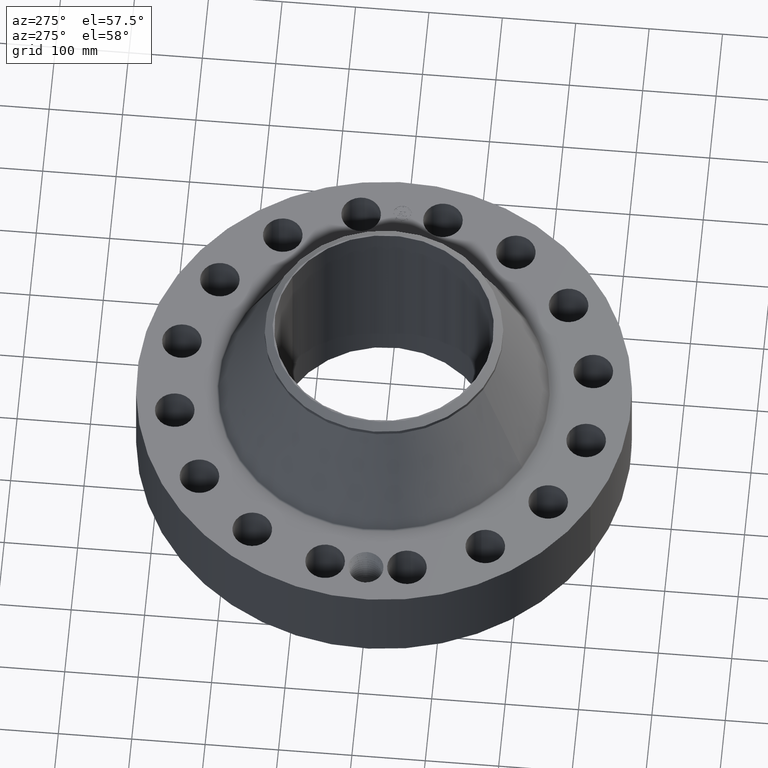
[diagram: clean part render]
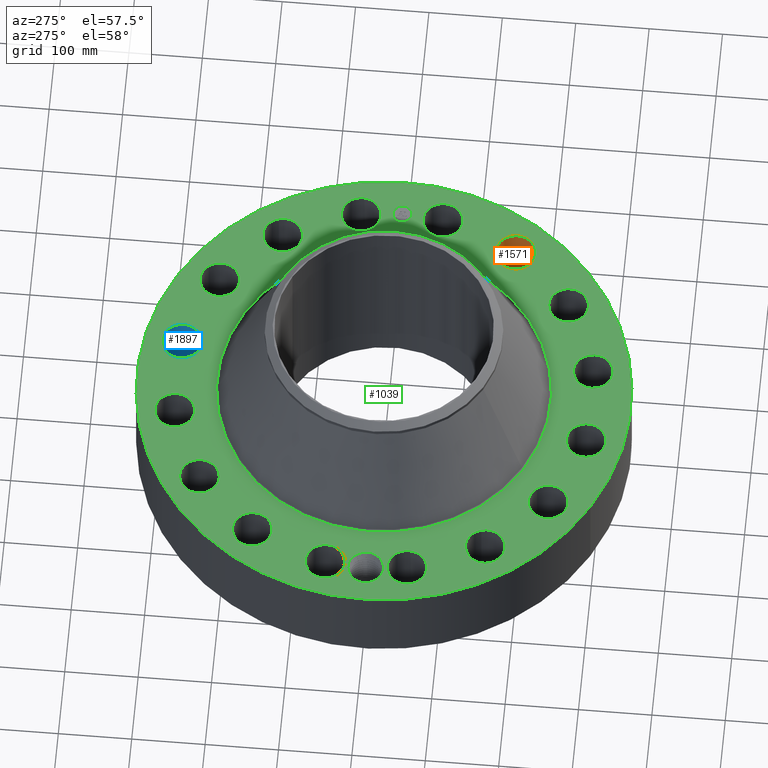
[diagram: same view with three faces highlighted in distinct colors, each labeled with its STEP entity id]
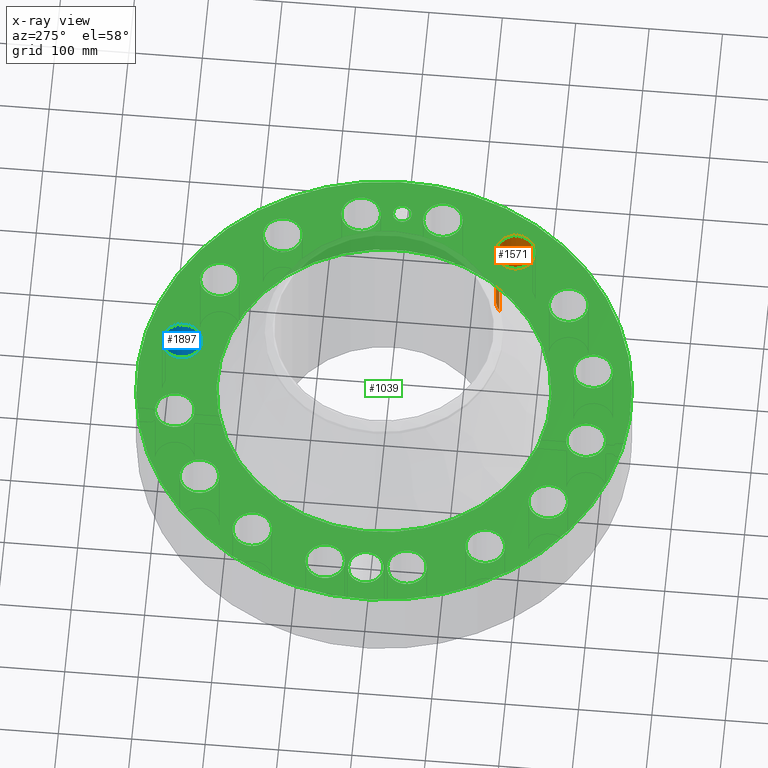
[diagram: x-ray of the same camera — body ghosted, the three highlighted faces saturated]
A machine part, auxiliary view with three faces highlighted in distinct colors.
The next image is the same camera in x-ray (body ghosted, the three faces saturated) — at least one of them is partly hidden behind the body in this view.
Their STEP definitions:

[orange] entity #1571 — the highlighted cylindrical surface (edge-blend (fillet) strip) has radius 26.924 mm, axis along (0, -0, -1).
#280=AXIS2_PLACEMENT_3D('Circle Axis2P3D',#278,#279,$) ;
#762=AXIS2_PLACEMENT_3D('Circle Axis2P3D',#760,#761,$) ;
#1553=AXIS2_PLACEMENT_3D('Cylinder Axis2P3D',#1550,#1551,#1552) ;
#278=CARTESIAN_POINT('Axis2P3D Location',(9.35403313844,-6.2501651215,0.250000000001)) ;
#282=CARTESIAN_POINT('Vertex',(8.68908204072,-5.42467130708,0.250000000001)) ;
#284=CARTESIAN_POINT('Vertex',(10.0189842362,-7.07565893591,0.250000000001)) ;
#755=CARTESIAN_POINT('Vertex',(10.0189842362,-7.07565893591,5.13000000002)) ;
#757=CARTESIAN_POINT('Vertex',(8.68908204072,-5.42467130708,5.13000000002)) ;
#760=CARTESIAN_POINT('Axis2P3D Location',(9.35403313844,-6.2501651215,5.13000000002)) ;
#1550=CARTESIAN_POINT('Axis2P3D Location',(9.35403313844,-6.2501651215,5.12606299215)) ;
#1555=CARTESIAN_POINT('Line Origine',(8.68908204072,-5.42467130708,2.69000000001)) ;
#1560=CARTESIAN_POINT('Line Origine',(10.0189842362,-7.07565893591,2.69000000001)) ;
#279=DIRECTION('Axis2P3D Direction',(0.,0.,-0.0393700787402)) ;
#761=DIRECTION('Axis2P3D Direction',(0.,0.,-0.0393700787402)) ;
#1551=DIRECTION('Axis2P3D Direction',(0.,-0.,-0.0393700787402)) ;
#1552=DIRECTION('Axis2P3D XDirection',(0.0246973368639,-0.030660147616,0.)) ;
#1556=DIRECTION('Vector Direction',(0.,0.,-0.0393700787402)) ;
#1561=DIRECTION('Vector Direction',(0.,0.,-0.0393700787402)) ;
#1557=VECTOR('Line Direction',#1556,0.0393700787402) ;
#1562=VECTOR('Line Direction',#1561,0.0393700787402) ;
#1566=ORIENTED_EDGE('',*,*,#1559,.F.) ;
#1567=ORIENTED_EDGE('',*,*,#286,.T.) ;
#1568=ORIENTED_EDGE('',*,*,#1564,.T.) ;
#1569=ORIENTED_EDGE('',*,*,#764,.F.) ;
#1571=ADVANCED_FACE('PartBody',(#1570),#1554,.F.) ;
#281=CIRCLE('generated circle',#280,1.06) ;
#763=CIRCLE('generated circle',#762,1.06) ;
#1554=CYLINDRICAL_SURFACE('generated cylinder',#1553,1.06) ;
#286=EDGE_CURVE('',#283,#285,#281,.T.) ;
#764=EDGE_CURVE('',#758,#756,#763,.T.) ;
#1559=EDGE_CURVE('',#283,#758,#1558,.F.) ;
#1564=EDGE_CURVE('',#285,#756,#1563,.F.) ;
#1565=EDGE_LOOP('',(#1566,#1567,#1568,#1569)) ;
#1570=FACE_OUTER_BOUND('',#1565,.T.) ;
#1558=LINE('Line',#1555,#1557) ;
#1563=LINE('Line',#1560,#1562) ;
#283=VERTEX_POINT('',#282) ;
#285=VERTEX_POINT('',#284) ;
#756=VERTEX_POINT('',#755) ;
#758=VERTEX_POINT('',#757) ;

[blue] entity #1897 — the highlighted cylindrical surface (edge-blend (fillet) strip) has radius 26.924 mm, axis along (0, 0, -1).
#487=AXIS2_PLACEMENT_3D('Circle Axis2P3D',#485,#486,$) ;
#951=AXIS2_PLACEMENT_3D('Circle Axis2P3D',#949,#950,$) ;
#1872=AXIS2_PLACEMENT_3D('Cylinder Axis2P3D',#1869,#1870,#1871) ;
#480=CARTESIAN_POINT('Vertex',(1.68657505177,10.103596889,0.250000000001)) ;
#482=CARTESIAN_POINT('Vertex',(2.70295719361,11.9640719202,0.250000000001)) ;
#485=CARTESIAN_POINT('Axis2P3D Location',(2.19476612269,11.0338344046,0.250000000001)) ;
#949=CARTESIAN_POINT('Axis2P3D Location',(2.19476612269,11.0338344046,5.13000000002)) ;
#953=CARTESIAN_POINT('Vertex',(2.70295719361,11.9640719202,5.13000000002)) ;
#955=CARTESIAN_POINT('Vertex',(1.68657505177,10.103596889,5.13000000002)) ;
#1869=CARTESIAN_POINT('Axis2P3D Location',(2.19476612269,11.0338344046,5.12606299215)) ;
#1874=CARTESIAN_POINT('Line Origine',(1.68657505177,10.103596889,2.69000000001)) ;
#1879=CARTESIAN_POINT('Line Origine',(2.70295719361,11.9640719202,2.69000000001)) ;
#486=DIRECTION('Axis2P3D Direction',(0.,0.,-0.0393700787402)) ;
#950=DIRECTION('Axis2P3D Direction',(0.,0.,-0.0393700787402)) ;
#1870=DIRECTION('Axis2P3D Direction',(0.,0.,-0.0393700787402)) ;
#1871=DIRECTION('Axis2P3D XDirection',(0.0188750212049,0.0345504945626,0.)) ;
#1875=DIRECTION('Vector Direction',(0.,0.,-0.0393700787402)) ;
#1880=DIRECTION('Vector Direction',(0.,0.,-0.0393700787402)) ;
#1876=VECTOR('Line Direction',#1875,0.0393700787402) ;
#1881=VECTOR('Line Direction',#1880,0.0393700787402) ;
#1892=ORIENTED_EDGE('',*,*,#1883,.F.) ;
#1893=ORIENTED_EDGE('',*,*,#489,.T.) ;
#1894=ORIENTED_EDGE('',*,*,#1878,.T.) ;
#1895=ORIENTED_EDGE('',*,*,#957,.F.) ;
#1897=ADVANCED_FACE('PartBody',(#1896),#1873,.F.) ;
#488=CIRCLE('generated circle',#487,1.06) ;
#952=CIRCLE('generated circle',#951,1.06) ;
#1873=CYLINDRICAL_SURFACE('generated cylinder',#1872,1.06) ;
#489=EDGE_CURVE('',#483,#481,#488,.T.) ;
#957=EDGE_CURVE('',#954,#956,#952,.T.) ;
#1878=EDGE_CURVE('',#481,#956,#1877,.F.) ;
#1883=EDGE_CURVE('',#483,#954,#1882,.F.) ;
#1891=EDGE_LOOP('',(#1892,#1893,#1894,#1895)) ;
#1896=FACE_OUTER_BOUND('',#1891,.T.) ;
#1877=LINE('Line',#1874,#1876) ;
#1882=LINE('Line',#1879,#1881) ;
#481=VERTEX_POINT('',#480) ;
#483=VERTEX_POINT('',#482) ;
#954=VERTEX_POINT('',#953) ;
#956=VERTEX_POINT('',#955) ;

[green] entity #1039 — the highlighted planar face has unit normal (0, 0, -1).
#58=AXIS2_PLACEMENT_3D('Circle Axis2P3D',#56,#57,$) ;
#551=AXIS2_PLACEMENT_3D('Circle Axis2P3D',#549,#550,$) ;
#651=AXIS2_PLACEMENT_3D('Plane Axis2P3D',#648,#649,#650) ;
#699=AXIS2_PLACEMENT_3D('Circle Axis2P3D',#697,#698,$) ;
#706=AXIS2_PLACEMENT_3D('Circle Axis2P3D',#704,#705,$) ;
#717=AXIS2_PLACEMENT_3D('Circle Axis2P3D',#715,#716,$) ;
#726=AXIS2_PLACEMENT_3D('Circle Axis2P3D',#724,#725,$) ;
#735=AXIS2_PLACEMENT_3D('Circle Axis2P3D',#733,#734,$) ;
#744=AXIS2_PLACEMENT_3D('Circle Axis2P3D',#742,#743,$) ;
#753=AXIS2_PLACEMENT_3D('Circle Axis2P3D',#751,#752,$) ;
#762=AXIS2_PLACEMENT_3D('Circle Axis2P3D',#760,#761,$) ;
#771=AXIS2_PLACEMENT_3D('Circle Axis2P3D',#769,#770,$) ;
#780=AXIS2_PLACEMENT_3D('Circle Axis2P3D',#778,#779,$) ;
#789=AXIS2_PLACEMENT_3D('Circle Axis2P3D',#787,#788,$) ;
#798=AXIS2_PLACEMENT_3D('Circle Axis2P3D',#796,#797,$) ;
#807=AXIS2_PLACEMENT_3D('Circle Axis2P3D',#805,#806,$) ;
#816=AXIS2_PLACEMENT_3D('Circle Axis2P3D',#814,#815,$) ;
#825=AXIS2_PLACEMENT_3D('Circle Axis2P3D',#823,#824,$) ;
#834=AXIS2_PLACEMENT_3D('Circle Axis2P3D',#832,#833,$) ;
#843=AXIS2_PLACEMENT_3D('Circle Axis2P3D',#841,#842,$) ;
#852=AXIS2_PLACEMENT_3D('Circle Axis2P3D',#850,#851,$) ;
#861=AXIS2_PLACEMENT_3D('Circle Axis2P3D',#859,#860,$) ;
#870=AXIS2_PLACEMENT_3D('Circle Axis2P3D',#868,#869,$) ;
#879=AXIS2_PLACEMENT_3D('Circle Axis2P3D',#877,#878,$) ;
#888=AXIS2_PLACEMENT_3D('Circle Axis2P3D',#886,#887,$) ;
#897=AXIS2_PLACEMENT_3D('Circle Axis2P3D',#895,#896,$) ;
#906=AXIS2_PLACEMENT_3D('Circle Axis2P3D',#904,#905,$) ;
#915=AXIS2_PLACEMENT_3D('Circle Axis2P3D',#913,#914,$) ;
#924=AXIS2_PLACEMENT_3D('Circle Axis2P3D',#922,#923,$) ;
#933=AXIS2_PLACEMENT_3D('Circle Axis2P3D',#931,#932,$) ;
#942=AXIS2_PLACEMENT_3D('Circle Axis2P3D',#940,#941,$) ;
#951=AXIS2_PLACEMENT_3D('Circle Axis2P3D',#949,#950,$) ;
#960=AXIS2_PLACEMENT_3D('Circle Axis2P3D',#958,#959,$) ;
#969=AXIS2_PLACEMENT_3D('Circle Axis2P3D',#967,#968,$) ;
#978=AXIS2_PLACEMENT_3D('Circle Axis2P3D',#976,#977,$) ;
#987=AXIS2_PLACEMENT_3D('Circle Axis2P3D',#985,#986,$) ;
#996=AXIS2_PLACEMENT_3D('Circle Axis2P3D',#994,#995,$) ;
#1005=AXIS2_PLACEMENT_3D('Circle Axis2P3D',#1003,#1004,$) ;
#1014=AXIS2_PLACEMENT_3D('Circle Axis2P3D',#1012,#1013,$) ;
#1023=AXIS2_PLACEMENT_3D('Circle Axis2P3D',#1021,#1022,$) ;
#1032=AXIS2_PLACEMENT_3D('Circle Axis2P3D',#1030,#1031,$) ;
#53=CARTESIAN_POINT('Vertex',(-6.35238838653,-11.6279689451,5.13000000002)) ;
#56=CARTESIAN_POINT('Axis2P3D Location',(0.,0.,5.13000000002)) ;
#60=CARTESIAN_POINT('Vertex',(6.35238838653,11.6279689451,5.13000000002)) ;
#549=CARTESIAN_POINT('Axis2P3D Location',(0.,0.,5.13000000002)) ;
#648=CARTESIAN_POINT('Axis2P3D Location',(0.,13.2500000001,5.13000000002)) ;
#658=CARTESIAN_POINT('Control Point',(-10.25,-4.47585975282E-015,5.13000000002)) ;
#659=CARTESIAN_POINT('Control Point',(-10.2527320337,0.0777574263819,5.13000000002)) ;
#660=CARTESIAN_POINT('Control Point',(-10.2630267301,0.155123979677,5.13000000002)) ;
#661=CARTESIAN_POINT('Control Point',(-10.2808346305,0.231106979437,5.13000000002)) ;
#662=CARTESIAN_POINT('Control Point',(-10.3351598167,0.390627740557,5.13000000002)) ;
#663=CARTESIAN_POINT('Control Point',(-10.4215929914,0.534881512344,5.13000000002)) ;
#664=CARTESIAN_POINT('Control Point',(-10.4767765462,0.606722342086,5.13000000002)) ;
#665=CARTESIAN_POINT('Control Point',(-10.5934104642,0.726912143445,5.13000000002)) ;
#666=CARTESIAN_POINT('Control Point',(-10.7321012442,0.819211316568,5.13000000002)) ;
#667=CARTESIAN_POINT('Control Point',(-10.8000186409,0.855244125622,5.13000000002)) ;
#668=CARTESIAN_POINT('Control Point',(-10.8993956343,0.895881343236,5.13000000002)) ;
#669=CARTESIAN_POINT('Control Point',(-11.0027665247,0.922184077568,5.13000000002)) ;
#670=CARTESIAN_POINT('Control Point',(-11.0326224139,0.928521052739,5.13000000002)) ;
#671=CARTESIAN_POINT('Control Point',(-11.0626769069,0.933653119764,5.13000000002)) ;
#672=CARTESIAN_POINT('Control Point',(-11.0928639791,0.937573300303,5.13000000002)) ;
#673=CARTESIAN_POINT('Vertex',(-10.25,-4.47585975282E-015,5.13000000002)) ;
#675=CARTESIAN_POINT('Vertex',(-11.0928639791,0.937573300303,5.13000000002)) ;
#679=CARTESIAN_POINT('Control Point',(-10.25,0.,5.13000000002)) ;
#680=CARTESIAN_POINT('Control Point',(-10.2527325114,-0.0777710240086,5.13000000002)) ;
#681=CARTESIAN_POINT('Control Point',(-10.2630303187,-0.155151039991,5.13000000002)) ;
#682=CARTESIAN_POINT('Control Point',(-10.2808377736,-0.231132842975,5.13000000002)) ;
#683=CARTESIAN_POINT('Control Point',(-10.3351695791,-0.390677967333,5.13000000002)) ;
#684=CARTESIAN_POINT('Control Point',(-10.4215797696,-0.534880420853,5.13000000002)) ;
#685=CARTESIAN_POINT('Control Point',(-10.4767536225,-0.606694443875,5.13000000002)) ;
#686=CARTESIAN_POINT('Control Point',(-10.6023423943,-0.736111688115,5.13000000002)) ;
#687=CARTESIAN_POINT('Control Point',(-10.7534463634,-0.833176827363,5.13000000002)) ;
#688=CARTESIAN_POINT('Control Point',(-10.8341657187,-0.872657419509,5.13000000002)) ;
#689=CARTESIAN_POINT('Control Point',(-10.9356164102,-0.908372711227,5.13000000002)) ;
#690=CARTESIAN_POINT('Control Point',(-11.0401415716,-0.929488446872,5.13000000002)) ;
#691=CARTESIAN_POINT('Control Point',(-11.0577838933,-0.932622273109,5.13000000002)) ;
#692=CARTESIAN_POINT('Control Point',(-11.0754872404,-0.93533864903,5.13000000002)) ;
#693=CARTESIAN_POINT('Control Point',(-11.0932384977,-0.937635992215,5.13000000002)) ;
#694=CARTESIAN_POINT('Vertex',(-11.0932384977,-0.937635992215,5.13000000002)) ;
#697=CARTESIAN_POINT('Axis2P3D Location',(-11.25,0.,5.13000000002)) ;
#701=CARTESIAN_POINT('Vertex',(-12.0842738625,0.455765888276,5.13000000002)) ;
#704=CARTESIAN_POINT('Axis2P3D Location',(-11.25,0.,5.13000000002)) ;
#715=CARTESIAN_POINT('Axis2P3D Location',(11.0338344046,-2.19476612269,5.13000000002)) ;
#719=CARTESIAN_POINT('Vertex',(10.103596889,-1.68657505177,5.13000000002)) ;
#721=CARTESIAN_POINT('Vertex',(11.9640719202,-2.70295719361,5.13000000002)) ;
#724=CARTESIAN_POINT('Axis2P3D Location',(11.0338344046,-2.19476612269,5.13000000002)) ;
#733=CARTESIAN_POINT('Axis2P3D Location',(0.,0.,5.13000000002)) ;
#737=CARTESIAN_POINT('Vertex',(-4.29243841301,-7.85725581122,5.13000000002)) ;
#739=CARTESIAN_POINT('Vertex',(4.29243841301,7.85725581122,5.13000000002)) ;
#742=CARTESIAN_POINT('Axis2P3D Location',(0.,0.,5.13000000002)) ;
#751=CARTESIAN_POINT('Axis2P3D Location',(9.35403313844,-6.2501651215,5.13000000002)) ;
#755=CARTESIAN_POINT('Vertex',(10.0189842362,-7.07565893591,5.13000000002)) ;
#757=CARTESIAN_POINT('Vertex',(8.68908204072,-5.42467130708,5.13000000002)) ;
#760=CARTESIAN_POINT('Axis2P3D Location',(9.35403313844,-6.2501651215,5.13000000002)) ;
#769=CARTESIAN_POINT('Axis2P3D Location',(6.2501651215,-9.35403313844,5.13000000002)) ;
#773=CARTESIAN_POINT('Vertex',(6.54859702451,-10.3711557462,5.13000000002)) ;
#775=CARTESIAN_POINT('Vertex',(5.95173321848,-8.33691053065,5.13000000002)) ;
#778=CARTESIAN_POINT('Axis2P3D Location',(6.2501651215,-9.35403313844,5.13000000002)) ;
#787=CARTESIAN_POINT('Axis2P3D Location',(2.19476612269,-11.0338344046,5.13000000002)) ;
#791=CARTESIAN_POINT('Vertex',(2.08124527905,-12.0877381089,5.13000000002)) ;
#793=CARTESIAN_POINT('Vertex',(2.30828696633,-9.97993070022,5.13000000002)) ;
#796=CARTESIAN_POINT('Axis2P3D Location',(2.19476612269,-11.0338344046,5.13000000002)) ;
#805=CARTESIAN_POINT('Axis2P3D Location',(-2.19476612269,-11.0338344046,5.13000000002)) ;
#809=CARTESIAN_POINT('Vertex',(-2.70295719361,-11.9640719202,5.13000000002)) ;
#811=CARTESIAN_POINT('Vertex',(-1.68657505177,-10.103596889,5.13000000002)) ;
#814=CARTESIAN_POINT('Axis2P3D Location',(-2.19476612269,-11.0338344046,5.13000000002)) ;
#823=CARTESIAN_POINT('Axis2P3D Location',(-6.2501651215,-9.35403313844,5.13000000002)) ;
#827=CARTESIAN_POINT('Vertex',(-7.07565893591,-10.0189842362,5.13000000002)) ;
#829=CARTESIAN_POINT('Vertex',(-5.42467130708,-8.68908204072,5.13000000002)) ;
#832=CARTESIAN_POINT('Axis2P3D Location',(-6.2501651215,-9.35403313844,5.13000000002)) ;
#841=CARTESIAN_POINT('Axis2P3D Location',(-9.35403313844,-6.2501651215,5.13000000002)) ;
#845=CARTESIAN_POINT('Vertex',(-10.3711557462,-6.54859702451,5.13000000002)) ;
#847=CARTESIAN_POINT('Vertex',(-8.33691053065,-5.95173321848,5.13000000002)) ;
#850=CARTESIAN_POINT('Axis2P3D Location',(-9.35403313844,-6.2501651215,5.13000000002)) ;
#859=CARTESIAN_POINT('Axis2P3D Location',(-11.0338344046,-2.19476612269,5.13000000002)) ;
#863=CARTESIAN_POINT('Vertex',(-12.0877381089,-2.08124527905,5.13000000002)) ;
#865=CARTESIAN_POINT('Vertex',(-9.97993070022,-2.30828696633,5.13000000002)) ;
#868=CARTESIAN_POINT('Axis2P3D Location',(-11.0338344046,-2.19476612269,5.13000000002)) ;
#877=CARTESIAN_POINT('Axis2P3D Location',(-11.0338344046,2.19476612269,5.13000000002)) ;
#881=CARTESIAN_POINT('Vertex',(-11.9640719202,2.70295719361,5.13000000002)) ;
#883=CARTESIAN_POINT('Vertex',(-10.103596889,1.68657505177,5.13000000002)) ;
#886=CARTESIAN_POINT('Axis2P3D Location',(-11.0338344046,2.19476612269,5.13000000002)) ;
#895=CARTESIAN_POINT('Axis2P3D Location',(-9.35403313844,6.2501651215,5.13000000002)) ;
#899=CARTESIAN_POINT('Vertex',(-10.0189842362,7.07565893591,5.13000000002)) ;
#901=CARTESIAN_POINT('Vertex',(-8.68908204072,5.42467130708,5.13000000002)) ;
#904=CARTESIAN_POINT('Axis2P3D Location',(-9.35403313844,6.2501651215,5.13000000002)) ;
#913=CARTESIAN_POINT('Axis2P3D Location',(-6.2501651215,9.35403313844,5.13000000002)) ;
#917=CARTESIAN_POINT('Vertex',(-6.54859702451,10.3711557462,5.13000000002)) ;
#919=CARTESIAN_POINT('Vertex',(-5.95173321848,8.33691053065,5.13000000002)) ;
#922=CARTESIAN_POINT('Axis2P3D Location',(-6.2501651215,9.35403313844,5.13000000002)) ;
#931=CARTESIAN_POINT('Axis2P3D Location',(-2.19476612269,11.0338344046,5.13000000002)) ;
#935=CARTESIAN_POINT('Vertex',(-2.08124527905,12.0877381089,5.13000000002)) ;
#937=CARTESIAN_POINT('Vertex',(-2.30828696633,9.97993070022,5.13000000002)) ;
#940=CARTESIAN_POINT('Axis2P3D Location',(-2.19476612269,11.0338344046,5.13000000002)) ;
#949=CARTESIAN_POINT('Axis2P3D Location',(2.19476612269,11.0338344046,5.13000000002)) ;
#953=CARTESIAN_POINT('Vertex',(2.70295719361,11.9640719202,5.13000000002)) ;
#955=CARTESIAN_POINT('Vertex',(1.68657505177,10.103596889,5.13000000002)) ;
#958=CARTESIAN_POINT('Axis2P3D Location',(2.19476612269,11.0338344046,5.13000000002)) ;
#967=CARTESIAN_POINT('Axis2P3D Location',(6.2501651215,9.35403313844,5.13000000002)) ;
#971=CARTESIAN_POINT('Vertex',(7.07565893591,10.0189842362,5.13000000002)) ;
#973=CARTESIAN_POINT('Vertex',(5.42467130708,8.68908204072,5.13000000002)) ;
#976=CARTESIAN_POINT('Axis2P3D Location',(6.2501651215,9.35403313844,5.13000000002)) ;
#985=CARTESIAN_POINT('Axis2P3D Location',(9.35403313844,6.2501651215,5.13000000002)) ;
#989=CARTESIAN_POINT('Vertex',(10.3711557462,6.54859702451,5.13000000002)) ;
#991=CARTESIAN_POINT('Vertex',(8.33691053065,5.95173321848,5.13000000002)) ;
#994=CARTESIAN_POINT('Axis2P3D Location',(9.35403313844,6.2501651215,5.13000000002)) ;
#1003=CARTESIAN_POINT('Axis2P3D Location',(11.0338344046,2.19476612269,5.13000000002)) ;
#1007=CARTESIAN_POINT('Vertex',(12.0877381089,2.08124527905,5.13000000002)) ;
#1009=CARTESIAN_POINT('Vertex',(9.97993070022,2.30828696633,5.13000000002)) ;
#1012=CARTESIAN_POINT('Axis2P3D Location',(11.0338344046,2.19476612269,5.13000000002)) ;
#1021=CARTESIAN_POINT('Axis2P3D Location',(11.25,-2.23792987641E-014,5.13000000002)) ;
#1025=CARTESIAN_POINT('Vertex',(11.25,0.499999995002,5.13000000002)) ;
#1027=CARTESIAN_POINT('Vertex',(11.25,-0.499999995002,5.13000000002)) ;
#1030=CARTESIAN_POINT('Axis2P3D Location',(11.25,-2.46172286405E-014,5.13000000002)) ;
#57=DIRECTION('Axis2P3D Direction',(0.,0.,-0.0393700787402)) ;
#550=DIRECTION('Axis2P3D Direction',(0.,0.,-0.0393700787402)) ;
#649=DIRECTION('Axis2P3D Direction',(0.,0.,-0.0393700787402)) ;
#650=DIRECTION('Axis2P3D XDirection',(0.0393700787402,0.,0.)) ;
#698=DIRECTION('Axis2P3D Direction',(0.,0.,-0.0393700787402)) ;
#705=DIRECTION('Axis2P3D Direction',(0.,0.,-0.0393700787402)) ;
#716=DIRECTION('Axis2P3D Direction',(0.,0.,-0.0393700787402)) ;
#725=DIRECTION('Axis2P3D Direction',(0.,0.,-0.0393700787402)) ;
#734=DIRECTION('Axis2P3D Direction',(0.,0.,-0.0393700787402)) ;
#743=DIRECTION('Axis2P3D Direction',(0.,0.,-0.0393700787402)) ;
#752=DIRECTION('Axis2P3D Direction',(0.,0.,-0.0393700787402)) ;
#761=DIRECTION('Axis2P3D Direction',(0.,0.,-0.0393700787402)) ;
#770=DIRECTION('Axis2P3D Direction',(0.,0.,-0.0393700787402)) ;
#779=DIRECTION('Axis2P3D Direction',(0.,0.,-0.0393700787402)) ;
#788=DIRECTION('Axis2P3D Direction',(0.,0.,-0.0393700787402)) ;
#797=DIRECTION('Axis2P3D Direction',(0.,0.,-0.0393700787402)) ;
#806=DIRECTION('Axis2P3D Direction',(0.,0.,-0.0393700787402)) ;
#815=DIRECTION('Axis2P3D Direction',(0.,0.,-0.0393700787402)) ;
#824=DIRECTION('Axis2P3D Direction',(0.,0.,-0.0393700787402)) ;
#833=DIRECTION('Axis2P3D Direction',(0.,0.,-0.0393700787402)) ;
#842=DIRECTION('Axis2P3D Direction',(0.,0.,-0.0393700787402)) ;
#851=DIRECTION('Axis2P3D Direction',(0.,0.,-0.0393700787402)) ;
#860=DIRECTION('Axis2P3D Direction',(0.,0.,-0.0393700787402)) ;
#869=DIRECTION('Axis2P3D Direction',(0.,0.,-0.0393700787402)) ;
#878=DIRECTION('Axis2P3D Direction',(0.,0.,-0.0393700787402)) ;
#887=DIRECTION('Axis2P3D Direction',(0.,0.,-0.0393700787402)) ;
#896=DIRECTION('Axis2P3D Direction',(0.,0.,-0.0393700787402)) ;
#905=DIRECTION('Axis2P3D Direction',(0.,0.,-0.0393700787402)) ;
#914=DIRECTION('Axis2P3D Direction',(0.,0.,-0.0393700787402)) ;
#923=DIRECTION('Axis2P3D Direction',(0.,0.,-0.0393700787402)) ;
#932=DIRECTION('Axis2P3D Direction',(0.,0.,-0.0393700787402)) ;
#941=DIRECTION('Axis2P3D Direction',(0.,0.,-0.0393700787402)) ;
#950=DIRECTION('Axis2P3D Direction',(0.,0.,-0.0393700787402)) ;
#959=DIRECTION('Axis2P3D Direction',(0.,0.,-0.0393700787402)) ;
#968=DIRECTION('Axis2P3D Direction',(0.,0.,-0.0393700787402)) ;
#977=DIRECTION('Axis2P3D Direction',(0.,0.,-0.0393700787402)) ;
#986=DIRECTION('Axis2P3D Direction',(0.,0.,-0.0393700787402)) ;
#995=DIRECTION('Axis2P3D Direction',(0.,0.,-0.0393700787402)) ;
#1004=DIRECTION('Axis2P3D Direction',(0.,0.,-0.0393700787402)) ;
#1013=DIRECTION('Axis2P3D Direction',(0.,0.,-0.0393700787402)) ;
#1022=DIRECTION('Axis2P3D Direction',(0.,0.,-0.0393700787402)) ;
#1031=DIRECTION('Axis2P3D Direction',(0.,0.,-0.0393700787402)) ;
#654=ORIENTED_EDGE('',*,*,#553,.F.) ;
#655=ORIENTED_EDGE('',*,*,#62,.F.) ;
#710=ORIENTED_EDGE('',*,*,#677,.F.) ;
#711=ORIENTED_EDGE('',*,*,#696,.T.) ;
#712=ORIENTED_EDGE('',*,*,#703,.T.) ;
#713=ORIENTED_EDGE('',*,*,#708,.T.) ;
#730=ORIENTED_EDGE('',*,*,#723,.T.) ;
#731=ORIENTED_EDGE('',*,*,#728,.T.) ;
#748=ORIENTED_EDGE('',*,*,#741,.T.) ;
#749=ORIENTED_EDGE('',*,*,#746,.T.) ;
#766=ORIENTED_EDGE('',*,*,#759,.T.) ;
#767=ORIENTED_EDGE('',*,*,#764,.T.) ;
#784=ORIENTED_EDGE('',*,*,#777,.T.) ;
#785=ORIENTED_EDGE('',*,*,#782,.T.) ;
#802=ORIENTED_EDGE('',*,*,#795,.T.) ;
#803=ORIENTED_EDGE('',*,*,#800,.T.) ;
#820=ORIENTED_EDGE('',*,*,#813,.T.) ;
#821=ORIENTED_EDGE('',*,*,#818,.T.) ;
#838=ORIENTED_EDGE('',*,*,#831,.T.) ;
#839=ORIENTED_EDGE('',*,*,#836,.T.) ;
#856=ORIENTED_EDGE('',*,*,#849,.T.) ;
#857=ORIENTED_EDGE('',*,*,#854,.T.) ;
#874=ORIENTED_EDGE('',*,*,#867,.T.) ;
#875=ORIENTED_EDGE('',*,*,#872,.T.) ;
#892=ORIENTED_EDGE('',*,*,#885,.T.) ;
#893=ORIENTED_EDGE('',*,*,#890,.T.) ;
#910=ORIENTED_EDGE('',*,*,#903,.T.) ;
#911=ORIENTED_EDGE('',*,*,#908,.T.) ;
#928=ORIENTED_EDGE('',*,*,#921,.T.) ;
#929=ORIENTED_EDGE('',*,*,#926,.T.) ;
#946=ORIENTED_EDGE('',*,*,#939,.T.) ;
#947=ORIENTED_EDGE('',*,*,#944,.T.) ;
#964=ORIENTED_EDGE('',*,*,#957,.T.) ;
#965=ORIENTED_EDGE('',*,*,#962,.T.) ;
#982=ORIENTED_EDGE('',*,*,#975,.T.) ;
#983=ORIENTED_EDGE('',*,*,#980,.T.) ;
#1000=ORIENTED_EDGE('',*,*,#993,.T.) ;
#1001=ORIENTED_EDGE('',*,*,#998,.T.) ;
#1018=ORIENTED_EDGE('',*,*,#1011,.T.) ;
#1019=ORIENTED_EDGE('',*,*,#1016,.T.) ;
#1036=ORIENTED_EDGE('',*,*,#1029,.T.) ;
#1037=ORIENTED_EDGE('',*,*,#1034,.T.) ;
#714=FACE_BOUND('',#709,.T.) ;
#732=FACE_BOUND('',#729,.T.) ;
#750=FACE_BOUND('',#747,.T.) ;
#768=FACE_BOUND('',#765,.T.) ;
#786=FACE_BOUND('',#783,.T.) ;
#804=FACE_BOUND('',#801,.T.) ;
#822=FACE_BOUND('',#819,.T.) ;
#840=FACE_BOUND('',#837,.T.) ;
#858=FACE_BOUND('',#855,.T.) ;
#876=FACE_BOUND('',#873,.T.) ;
#894=FACE_BOUND('',#891,.T.) ;
#912=FACE_BOUND('',#909,.T.) ;
#930=FACE_BOUND('',#927,.T.) ;
#948=FACE_BOUND('',#945,.T.) ;
#966=FACE_BOUND('',#963,.T.) ;
#984=FACE_BOUND('',#981,.T.) ;
#1002=FACE_BOUND('',#999,.T.) ;
#1020=FACE_BOUND('',#1017,.T.) ;
#1038=FACE_BOUND('',#1035,.T.) ;
#1039=ADVANCED_FACE('PartBody',(#656,#714,#732,#750,#768,#786,#804,#822,#840,#858,#876,#894,#912,#930,#948,#966,#984,#1002,#1020,#1038),#652,.F.) ;
#657=B_SPLINE_CURVE_WITH_KNOTS('',5,(#658,#659,#660,#661,#662,#663,#664,#665,#666,#667,#668,#669,#670,#671,#672),.UNSPECIFIED.,.F.,.U.,(6,3,3,3,6),(0.,13.6058671192,29.4810710413,43.0827603751,48.5382670694),.UNSPECIFIED.) ;
#678=B_SPLINE_CURVE_WITH_KNOTS('',5,(#679,#680,#681,#682,#683,#684,#685,#686,#687,#688,#689,#690,#691,#692,#693),.UNSPECIFIED.,.F.,.U.,(6,3,3,3,6),(0.,13.6082464098,29.4973409101,45.3928541586,48.6042981025),.UNSPECIFIED.) ;
#59=CIRCLE('generated circle',#58,13.2500000001) ;
#552=CIRCLE('generated circle',#551,13.2500000001) ;
#700=CIRCLE('generated circle',#699,0.950650000004) ;
#707=CIRCLE('generated circle',#706,0.950650000004) ;
#718=CIRCLE('generated circle',#717,1.06) ;
#727=CIRCLE('generated circle',#726,1.06) ;
#736=CIRCLE('generated circle',#735,8.95329528232) ;
#745=CIRCLE('generated circle',#744,8.95329528232) ;
#754=CIRCLE('generated circle',#753,1.06) ;
#763=CIRCLE('generated circle',#762,1.06) ;
#772=CIRCLE('generated circle',#771,1.06) ;
#781=CIRCLE('generated circle',#780,1.06) ;
#790=CIRCLE('generated circle',#789,1.06) ;
#799=CIRCLE('generated circle',#798,1.06) ;
#808=CIRCLE('generated circle',#807,1.06) ;
#817=CIRCLE('generated circle',#816,1.06) ;
#826=CIRCLE('generated circle',#825,1.06) ;
#835=CIRCLE('generated circle',#834,1.06) ;
#844=CIRCLE('generated circle',#843,1.06) ;
#853=CIRCLE('generated circle',#852,1.06) ;
#862=CIRCLE('generated circle',#861,1.06) ;
#871=CIRCLE('generated circle',#870,1.06) ;
#880=CIRCLE('generated circle',#879,1.06) ;
#889=CIRCLE('generated circle',#888,1.06) ;
#898=CIRCLE('generated circle',#897,1.06) ;
#907=CIRCLE('generated circle',#906,1.06) ;
#916=CIRCLE('generated circle',#915,1.06) ;
#925=CIRCLE('generated circle',#924,1.06) ;
#934=CIRCLE('generated circle',#933,1.06) ;
#943=CIRCLE('generated circle',#942,1.06) ;
#952=CIRCLE('generated circle',#951,1.06) ;
#961=CIRCLE('generated circle',#960,1.06) ;
#970=CIRCLE('generated circle',#969,1.06) ;
#979=CIRCLE('generated circle',#978,1.06) ;
#988=CIRCLE('generated circle',#987,1.06) ;
#997=CIRCLE('generated circle',#996,1.06) ;
#1006=CIRCLE('generated circle',#1005,1.06) ;
#1015=CIRCLE('generated circle',#1014,1.06) ;
#1024=CIRCLE('generated circle',#1023,0.499999995002) ;
#1033=CIRCLE('generated circle',#1032,0.499999995002) ;
#62=EDGE_CURVE('',#54,#61,#59,.T.) ;
#553=EDGE_CURVE('',#61,#54,#552,.T.) ;
#677=EDGE_CURVE('',#674,#676,#657,.T.) ;
#696=EDGE_CURVE('',#674,#695,#678,.T.) ;
#703=EDGE_CURVE('',#695,#702,#700,.T.) ;
#708=EDGE_CURVE('',#702,#676,#707,.T.) ;
#723=EDGE_CURVE('',#720,#722,#718,.T.) ;
#728=EDGE_CURVE('',#722,#720,#727,.T.) ;
#741=EDGE_CURVE('',#738,#740,#736,.T.) ;
#746=EDGE_CURVE('',#740,#738,#745,.T.) ;
#759=EDGE_CURVE('',#756,#758,#754,.T.) ;
#764=EDGE_CURVE('',#758,#756,#763,.T.) ;
#777=EDGE_CURVE('',#774,#776,#772,.T.) ;
#782=EDGE_CURVE('',#776,#774,#781,.T.) ;
#795=EDGE_CURVE('',#792,#794,#790,.T.) ;
#800=EDGE_CURVE('',#794,#792,#799,.T.) ;
#813=EDGE_CURVE('',#810,#812,#808,.T.) ;
#818=EDGE_CURVE('',#812,#810,#817,.T.) ;
#831=EDGE_CURVE('',#828,#830,#826,.T.) ;
#836=EDGE_CURVE('',#830,#828,#835,.T.) ;
#849=EDGE_CURVE('',#846,#848,#844,.T.) ;
#854=EDGE_CURVE('',#848,#846,#853,.T.) ;
#867=EDGE_CURVE('',#864,#866,#862,.T.) ;
#872=EDGE_CURVE('',#866,#864,#871,.T.) ;
#885=EDGE_CURVE('',#882,#884,#880,.T.) ;
#890=EDGE_CURVE('',#884,#882,#889,.T.) ;
#903=EDGE_CURVE('',#900,#902,#898,.T.) ;
#908=EDGE_CURVE('',#902,#900,#907,.T.) ;
#921=EDGE_CURVE('',#918,#920,#916,.T.) ;
#926=EDGE_CURVE('',#920,#918,#925,.T.) ;
#939=EDGE_CURVE('',#936,#938,#934,.T.) ;
#944=EDGE_CURVE('',#938,#936,#943,.T.) ;
#957=EDGE_CURVE('',#954,#956,#952,.T.) ;
#962=EDGE_CURVE('',#956,#954,#961,.T.) ;
#975=EDGE_CURVE('',#972,#974,#970,.T.) ;
#980=EDGE_CURVE('',#974,#972,#979,.T.) ;
#993=EDGE_CURVE('',#990,#992,#988,.T.) ;
#998=EDGE_CURVE('',#992,#990,#997,.T.) ;
#1011=EDGE_CURVE('',#1008,#1010,#1006,.T.) ;
#1016=EDGE_CURVE('',#1010,#1008,#1015,.T.) ;
#1029=EDGE_CURVE('',#1026,#1028,#1024,.T.) ;
#1034=EDGE_CURVE('',#1028,#1026,#1033,.T.) ;
#653=EDGE_LOOP('',(#654,#655)) ;
#709=EDGE_LOOP('',(#710,#711,#712,#713)) ;
#729=EDGE_LOOP('',(#730,#731)) ;
#747=EDGE_LOOP('',(#748,#749)) ;
#765=EDGE_LOOP('',(#766,#767)) ;
#783=EDGE_LOOP('',(#784,#785)) ;
#801=EDGE_LOOP('',(#802,#803)) ;
#819=EDGE_LOOP('',(#820,#821)) ;
#837=EDGE_LOOP('',(#838,#839)) ;
#855=EDGE_LOOP('',(#856,#857)) ;
#873=EDGE_LOOP('',(#874,#875)) ;
#891=EDGE_LOOP('',(#892,#893)) ;
#909=EDGE_LOOP('',(#910,#911)) ;
#927=EDGE_LOOP('',(#928,#929)) ;
#945=EDGE_LOOP('',(#946,#947)) ;
#963=EDGE_LOOP('',(#964,#965)) ;
#981=EDGE_LOOP('',(#982,#983)) ;
#999=EDGE_LOOP('',(#1000,#1001)) ;
#1017=EDGE_LOOP('',(#1018,#1019)) ;
#1035=EDGE_LOOP('',(#1036,#1037)) ;
#656=FACE_OUTER_BOUND('',#653,.T.) ;
#652=PLANE('',#651) ;
#54=VERTEX_POINT('',#53) ;
#61=VERTEX_POINT('',#60) ;
#674=VERTEX_POINT('',#673) ;
#676=VERTEX_POINT('',#675) ;
#695=VERTEX_POINT('',#694) ;
#702=VERTEX_POINT('',#701) ;
#720=VERTEX_POINT('',#719) ;
#722=VERTEX_POINT('',#721) ;
#738=VERTEX_POINT('',#737) ;
#740=VERTEX_POINT('',#739) ;
#756=VERTEX_POINT('',#755) ;
#758=VERTEX_POINT('',#757) ;
#774=VERTEX_POINT('',#773) ;
#776=VERTEX_POINT('',#775) ;
#792=VERTEX_POINT('',#791) ;
#794=VERTEX_POINT('',#793) ;
#810=VERTEX_POINT('',#809) ;
#812=VERTEX_POINT('',#811) ;
#828=VERTEX_POINT('',#827) ;
#830=VERTEX_POINT('',#829) ;
#846=VERTEX_POINT('',#845) ;
#848=VERTEX_POINT('',#847) ;
#864=VERTEX_POINT('',#863) ;
#866=VERTEX_POINT('',#865) ;
#882=VERTEX_POINT('',#881) ;
#884=VERTEX_POINT('',#883) ;
#900=VERTEX_POINT('',#899) ;
#902=VERTEX_POINT('',#901) ;
#918=VERTEX_POINT('',#917) ;
#920=VERTEX_POINT('',#919) ;
#936=VERTEX_POINT('',#935) ;
#938=VERTEX_POINT('',#937) ;
#954=VERTEX_POINT('',#953) ;
#956=VERTEX_POINT('',#955) ;
#972=VERTEX_POINT('',#971) ;
#974=VERTEX_POINT('',#973) ;
#990=VERTEX_POINT('',#989) ;
#992=VERTEX_POINT('',#991) ;
#1008=VERTEX_POINT('',#1007) ;
#1010=VERTEX_POINT('',#1009) ;
#1026=VERTEX_POINT('',#1025) ;
#1028=VERTEX_POINT('',#1027) ;